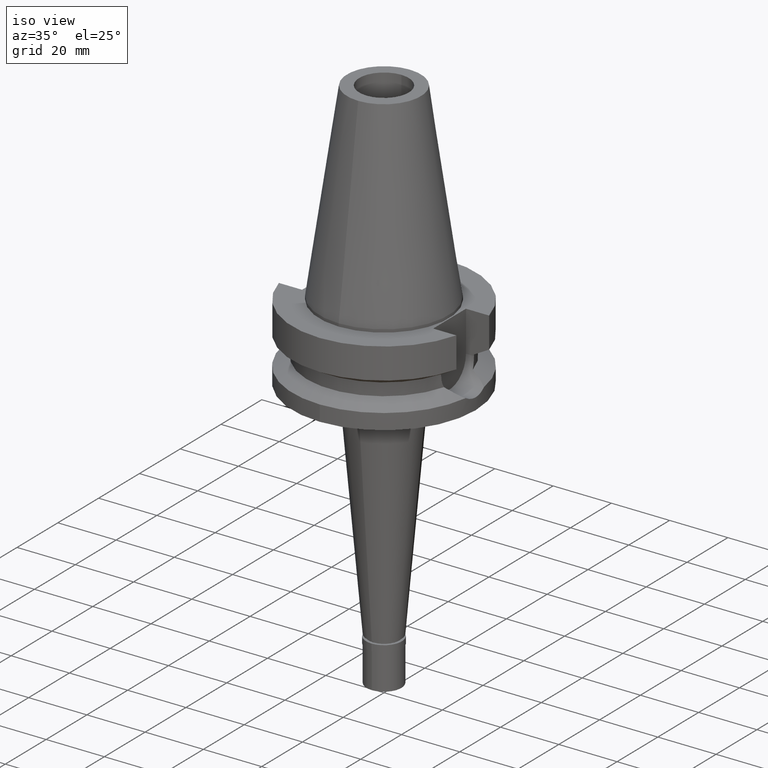
[diagram: clean part render]
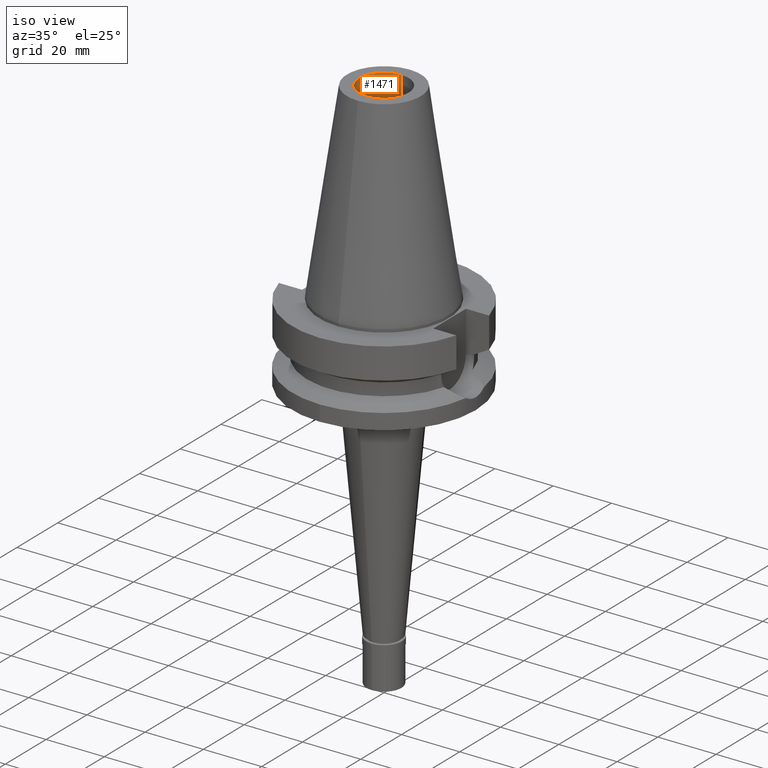
[diagram: same view with one face highlighted and labeled with its STEP entity id]
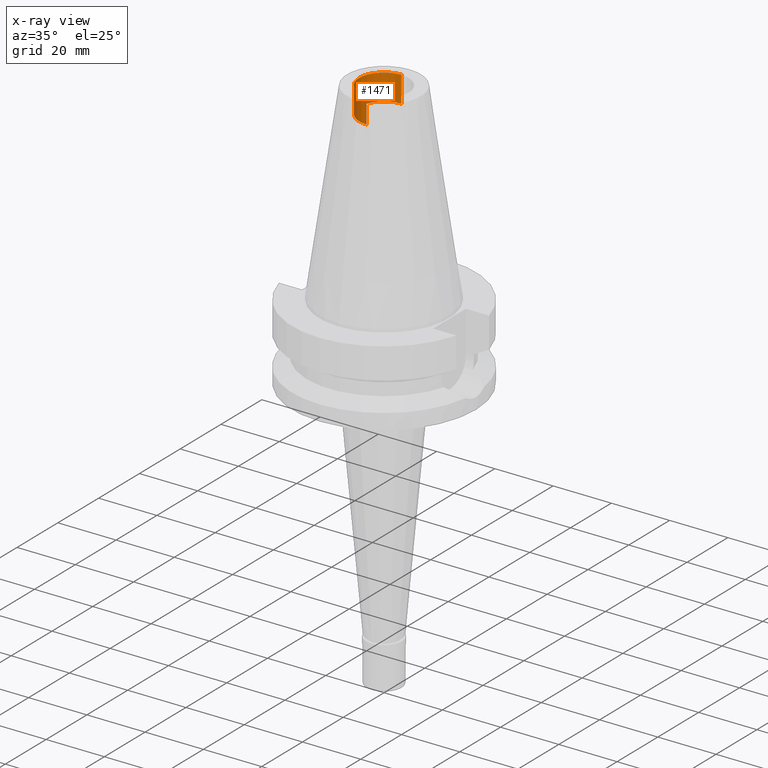
[diagram: x-ray of the same camera — body ghosted, the highlighted face saturated]
A machine part, iso view. The second image highlights one B-rep face of the part: STEP entity #1471.
The next image is the same camera in x-ray: the body ghosted, the highlighted face saturated — about 0% of this face is hidden behind the body in this view.
In plain terms, the highlighted cylindrical surface (edge-blend (fillet) strip) has radius 8.5 mm, axis along (0, 0, -1).
Its self-contained STEP definition (entity closure, byte-faithful):
#16 = FACE_OUTER_BOUND ( 'NONE', #388, .T. ) ;
#87 = CARTESIAN_POINT ( 'NONE',  ( 0.0000000000000000000, 2.136641270472000125E-14, 56.39999999999999858 ) ) ;
#120 = VERTEX_POINT ( 'NONE', #1651 ) ;
#122 = VECTOR ( 'NONE', #2377, 1000.000000000000000 ) ;
#294 = ORIENTED_EDGE ( 'NONE', *, *, #738, .T. ) ;
#388 = EDGE_LOOP ( 'NONE', ( #2186, #2745, #294, #1817 ) ) ;
#529 = DIRECTION ( 'NONE',  ( 0.0000000000000000000, 0.0000000000000000000, 1.000000000000000000 ) ) ;
#559 = EDGE_CURVE ( 'NONE', #120, #1120, #1235, .T. ) ;
#738 = EDGE_CURVE ( 'NONE', #1639, #1218, #1581, .T. ) ;
#750 = CARTESIAN_POINT ( 'NONE',  ( 0.0000000000000000000, 8.500000000000000000, 56.39999999999999858 ) ) ;
#769 = DIRECTION ( 'NONE',  ( 0.0000000000000000000, 0.0000000000000000000, -1.000000000000000000 ) ) ;
#904 = AXIS2_PLACEMENT_3D ( 'NONE', #1135, #2772, #1392 ) ;
#1045 = DIRECTION ( 'NONE',  ( 0.0000000000000000000, 0.0000000000000000000, 1.000000000000000000 ) ) ;
#1102 = CARTESIAN_POINT ( 'NONE',  ( 0.0000000000000000000, -8.500000000000000000, 65.40000000000000568 ) ) ;
#1120 = VERTEX_POINT ( 'NONE', #1102 ) ;
#1135 = CARTESIAN_POINT ( 'NONE',  ( 0.0000000000000000000, 2.136641270472000125E-14, 74.46999999999999886 ) ) ;
#1218 = VERTEX_POINT ( 'NONE', #2232 ) ;
#1235 = CIRCLE ( 'NONE', #1279, 8.500000000000000000 ) ;
#1279 = AXIS2_PLACEMENT_3D ( 'NONE', #2416, #1045, #2598 ) ;
#1313 = VECTOR ( 'NONE', #529, 1000.000000000000000 ) ;
#1392 = DIRECTION ( 'NONE',  ( 0.0000000000000000000, -1.000000000000000000, 0.0000000000000000000 ) ) ;
#1426 = LINE ( 'NONE', #750, #122 ) ;
#1471 = ADVANCED_FACE ( 'NONE', ( #16 ), #2296, .F. ) ;
#1485 = LINE ( 'NONE', #2581, #1313 ) ;
#1581 = CIRCLE ( 'NONE', #2016, 8.500000000000000000 ) ;
#1639 = VERTEX_POINT ( 'NONE', #2936 ) ;
#1651 = CARTESIAN_POINT ( 'NONE',  ( 0.0000000000000000000, 8.500000000000000000, 65.40000000000000568 ) ) ;
#1817 = ORIENTED_EDGE ( 'NONE', *, *, #2660, .T. ) ;
#2016 = AXIS2_PLACEMENT_3D ( 'NONE', #87, #769, #2574 ) ;
#2186 = ORIENTED_EDGE ( 'NONE', *, *, #559, .T. ) ;
#2232 = CARTESIAN_POINT ( 'NONE',  ( 0.0000000000000000000, 8.500000000000000000, 56.39999999999999858 ) ) ;
#2296 = CYLINDRICAL_SURFACE ( 'NONE', #904, 8.500000000000000000 ) ;
#2377 = DIRECTION ( 'NONE',  ( 0.0000000000000000000, 0.0000000000000000000, 1.000000000000000000 ) ) ;
#2416 = CARTESIAN_POINT ( 'NONE',  ( 0.0000000000000000000, 2.136641270472000125E-14, 65.40000000000000568 ) ) ;
#2574 = DIRECTION ( 'NONE',  ( 0.0000000000000000000, -1.000000000000000000, 0.0000000000000000000 ) ) ;
#2581 = CARTESIAN_POINT ( 'NONE',  ( 0.0000000000000000000, -8.500000000000000000, 56.39999999999999858 ) ) ;
#2598 = DIRECTION ( 'NONE',  ( 0.0000000000000000000, 1.000000000000000000, 0.0000000000000000000 ) ) ;
#2660 = EDGE_CURVE ( 'NONE', #1218, #120, #1426, .T. ) ;
#2697 = EDGE_CURVE ( 'NONE', #1639, #1120, #1485, .T. ) ;
#2745 = ORIENTED_EDGE ( 'NONE', *, *, #2697, .F. ) ;
#2772 = DIRECTION ( 'NONE',  ( 0.0000000000000000000, 0.0000000000000000000, -1.000000000000000000 ) ) ;
#2936 = CARTESIAN_POINT ( 'NONE',  ( 0.0000000000000000000, -8.500000000000000000, 56.39999999999999858 ) ) ;